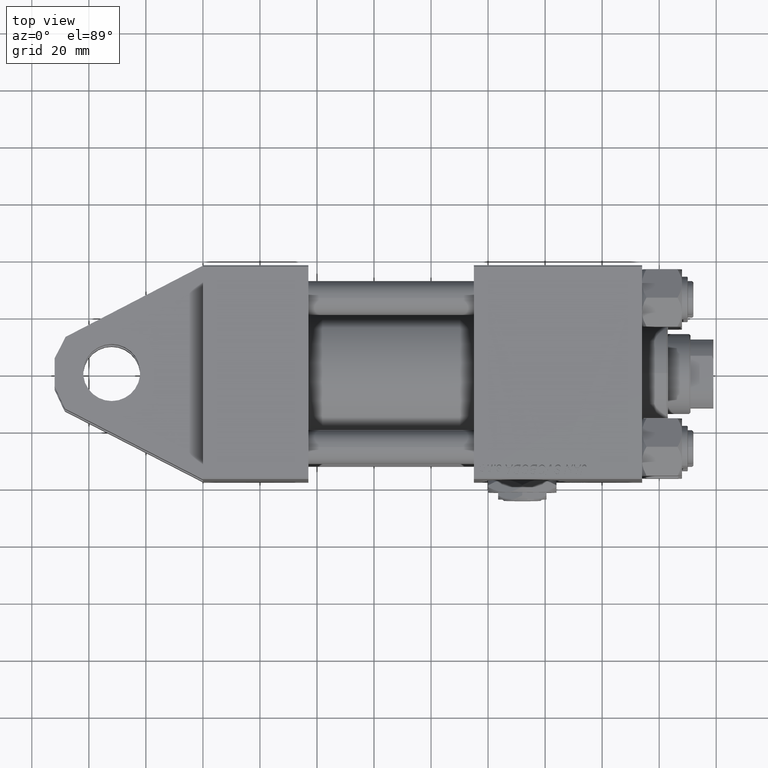
[diagram: clean part render]
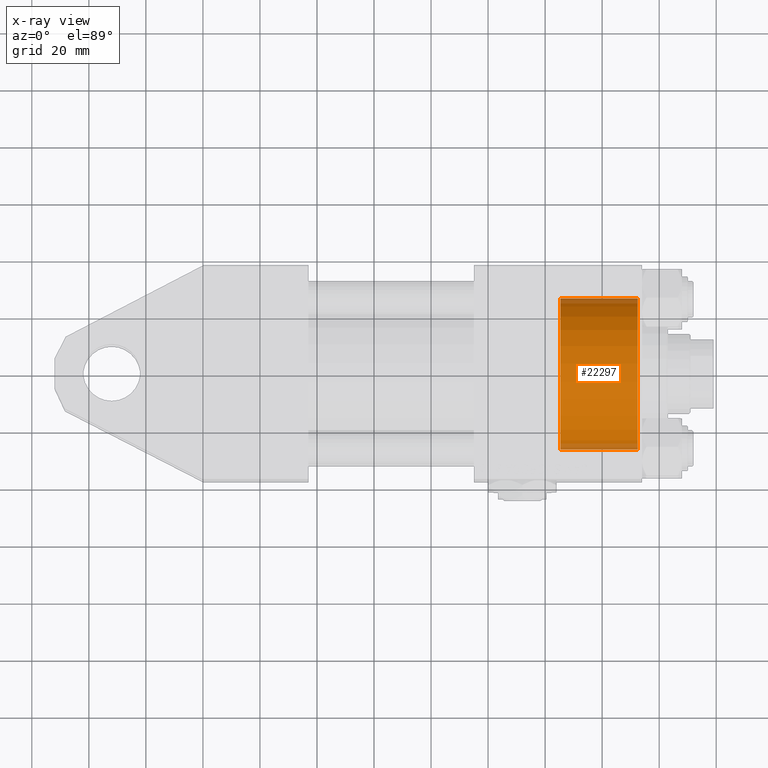
[diagram: x-ray — body ghosted, one internal face saturated and labeled with its STEP entity id]
A machine part, top view, then the same camera in x-ray: the body is ghosted and one INTERNAL B-rep face — a face not visible from any outside direction — is saturated and labeled: STEP entity #22297.
In plain terms, the highlighted cylindrical surface (partial cylindrical patch) has radius 26.5 mm, axis along (1, 0, 0).
Its self-contained STEP definition (entity closure, byte-faithful):
#58 = CARTESIAN_POINT ( 'NONE',  ( 125.2999999999999972, 3.245314017740486554E-15, 26.50000000000000355 ) ) ;
#100 = DIRECTION ( 'NONE',  ( 1.000000000000000000, -0.000000000000000000, -0.000000000000000000 ) ) ;
#619 = AXIS2_PLACEMENT_3D ( 'NONE', #2107, #33814, #35365 ) ;
#1598 = CARTESIAN_POINT ( 'NONE',  ( 152.5000000000000568, 0.000000000000000000, 0.000000000000000000 ) ) ;
#2107 = CARTESIAN_POINT ( 'NONE',  ( 125.2999999999999972, 0.000000000000000000, 0.000000000000000000 ) ) ;
#2608 = DIRECTION ( 'NONE',  ( 0.000000000000000000, 0.000000000000000000, -1.000000000000000000 ) ) ;
#2875 = CARTESIAN_POINT ( 'NONE',  ( 125.2999999999999972, 0.000000000000000000, -26.50000000000000355 ) ) ;
#5746 = CARTESIAN_POINT ( 'NONE',  ( 125.2999999999999972, 0.000000000000000000, 0.000000000000000000 ) ) ;
#9561 = VERTEX_POINT ( 'NONE', #19411 ) ;
#9646 = FACE_OUTER_BOUND ( 'NONE', #43014, .T. ) ;
#10397 = VERTEX_POINT ( 'NONE', #58 ) ;
#10605 = VECTOR ( 'NONE', #100, 1000.000000000000000 ) ;
#16504 = AXIS2_PLACEMENT_3D ( 'NONE', #5746, #49939, #2608 ) ;
#18208 = CYLINDRICAL_SURFACE ( 'NONE', #16504, 26.50000000000000355 ) ;
#19240 = ORIENTED_EDGE ( 'NONE', *, *, #23322, .T. ) ;
#19411 = CARTESIAN_POINT ( 'NONE',  ( 152.5000000000000568, 0.000000000000000000, -26.50000000000000355 ) ) ;
#20597 = LINE ( 'NONE', #36469, #10605 ) ;
#20702 = AXIS2_PLACEMENT_3D ( 'NONE', #1598, #41383, #28394 ) ;
#22297 = ADVANCED_FACE ( 'NONE', ( #9646 ), #18208, .F. ) ;
#23322 = EDGE_CURVE ( 'NONE', #43424, #9561, #33977, .T. ) ;
#24884 = VECTOR ( 'NONE', #49287, 1000.000000000000000 ) ;
#28381 = ORIENTED_EDGE ( 'NONE', *, *, #39951, .F. ) ;
#28394 = DIRECTION ( 'NONE',  ( 0.000000000000000000, 0.000000000000000000, 1.000000000000000000 ) ) ;
#33711 = CARTESIAN_POINT ( 'NONE',  ( 152.5000000000000568, 3.245314017740486554E-15, 26.50000000000000355 ) ) ;
#33814 = DIRECTION ( 'NONE',  ( 1.000000000000000000, 0.000000000000000000, 0.000000000000000000 ) ) ;
#33977 = CIRCLE ( 'NONE', #20702, 26.50000000000000355 ) ;
#34516 = VERTEX_POINT ( 'NONE', #2875 ) ;
#35365 = DIRECTION ( 'NONE',  ( 0.000000000000000000, 0.000000000000000000, -1.000000000000000000 ) ) ;
#36469 = CARTESIAN_POINT ( 'NONE',  ( 125.2999999999999972, 3.245314017740486554E-15, 26.50000000000000355 ) ) ;
#37251 = ORIENTED_EDGE ( 'NONE', *, *, #45459, .F. ) ;
#39951 = EDGE_CURVE ( 'NONE', #10397, #34516, #41311, .T. ) ;
#40545 = EDGE_CURVE ( 'NONE', #10397, #43424, #20597, .T. ) ;
#41193 = ORIENTED_EDGE ( 'NONE', *, *, #40545, .T. ) ;
#41311 = CIRCLE ( 'NONE', #619, 26.50000000000000355 ) ;
#41383 = DIRECTION ( 'NONE',  ( 1.000000000000000000, 0.000000000000000000, 0.000000000000000000 ) ) ;
#41745 = LINE ( 'NONE', #44876, #24884 ) ;
#43014 = EDGE_LOOP ( 'NONE', ( #28381, #41193, #19240, #37251 ) ) ;
#43424 = VERTEX_POINT ( 'NONE', #33711 ) ;
#44876 = CARTESIAN_POINT ( 'NONE',  ( 125.2999999999999972, 0.000000000000000000, -26.50000000000000355 ) ) ;
#45459 = EDGE_CURVE ( 'NONE', #34516, #9561, #41745, .T. ) ;
#49287 = DIRECTION ( 'NONE',  ( 1.000000000000000000, -0.000000000000000000, -0.000000000000000000 ) ) ;
#49939 = DIRECTION ( 'NONE',  ( 1.000000000000000000, -0.000000000000000000, -0.000000000000000000 ) ) ;